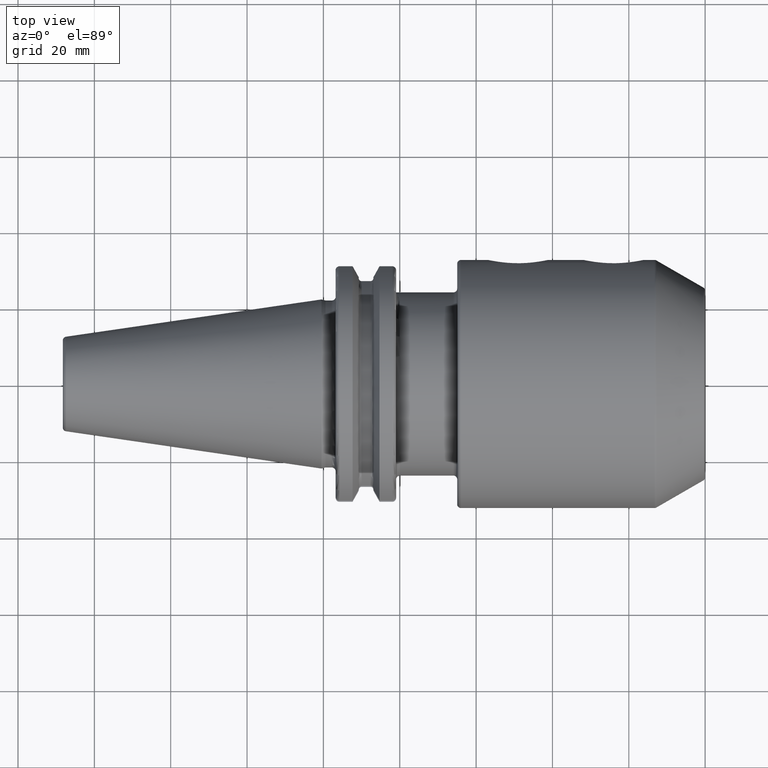
[diagram: clean part render]
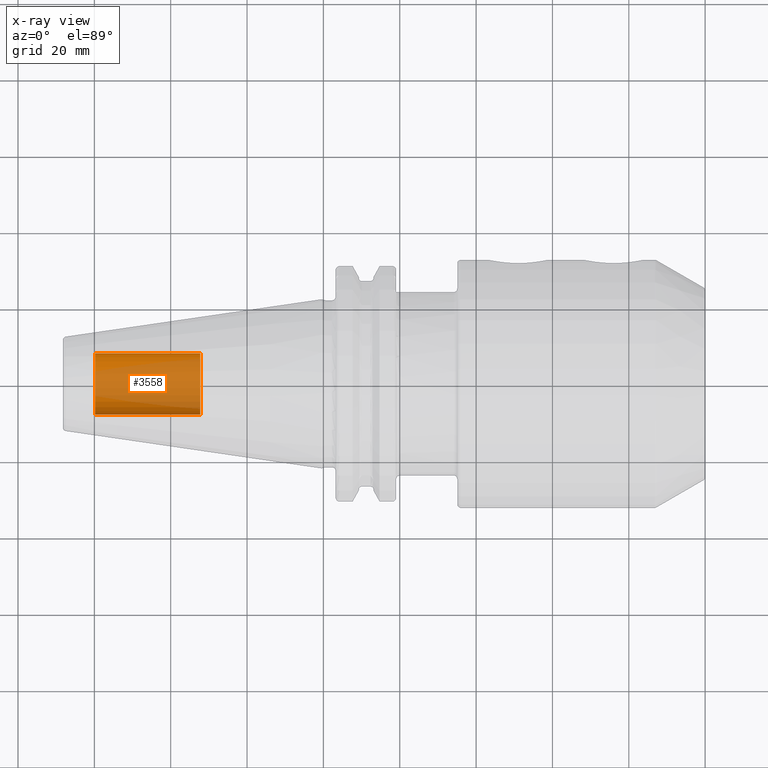
[diagram: x-ray — body ghosted, one internal face saturated and labeled with its STEP entity id]
A machine part, top view, then the same camera in x-ray: the body is ghosted and one INTERNAL B-rep face — a face not visible from any outside direction — is saturated and labeled: STEP entity #3558.
In plain terms, the highlighted cylindrical surface (edge-blend (fillet) strip) has radius 8.0028 mm, axis along (1, 0, 0).
Its self-contained STEP definition (entity closure, byte-faithful):
#3493=CARTESIAN_POINT('',(-5.98E1,0.E0,0.E0));
#3494=DIRECTION('',(-1.E0,0.E0,0.E0));
#3495=DIRECTION('',(0.E0,1.E0,0.E0));
#3496=AXIS2_PLACEMENT_3D('',#3493,#3494,#3495);
#3498=DIRECTION('',(1.E0,0.E0,0.E0));
#3499=VECTOR('',#3498,2.755E1);
#3500=CARTESIAN_POINT('',(-5.98E1,-8.00275E0,0.E0));
#3501=LINE('',#3500,#3499);
#3507=DIRECTION('',(1.E0,0.E0,0.E0));
#3508=VECTOR('',#3507,2.755E1);
#3509=CARTESIAN_POINT('',(-5.98E1,8.00275E0,0.E0));
#3510=LINE('',#3509,#3508);
#3516=CARTESIAN_POINT('',(-3.225E1,0.E0,0.E0));
#3517=DIRECTION('',(1.E0,0.E0,0.E0));
#3518=DIRECTION('',(0.E0,-1.E0,0.E0));
#3519=AXIS2_PLACEMENT_3D('',#3516,#3517,#3518);
#3531=CARTESIAN_POINT('',(-5.98E1,8.00275E0,0.E0));
#3532=CARTESIAN_POINT('',(-5.98E1,-8.00275E0,0.E0));
#3533=VERTEX_POINT('',#3531);
#3534=VERTEX_POINT('',#3532);
#3535=CARTESIAN_POINT('',(-3.225E1,8.00275E0,0.E0));
#3536=CARTESIAN_POINT('',(-3.225E1,-8.00275E0,0.E0));
#3537=VERTEX_POINT('',#3535);
#3538=VERTEX_POINT('',#3536);
#3543=CARTESIAN_POINT('',(-5.98E1,0.E0,0.E0));
#3544=DIRECTION('',(1.E0,0.E0,0.E0));
#3545=DIRECTION('',(0.E0,1.E0,0.E0));
#3546=AXIS2_PLACEMENT_3D('',#3543,#3544,#3545);
#3547=CYLINDRICAL_SURFACE('',#3546,8.00275E0);
#3549=ORIENTED_EDGE('',*,*,#3548,.T.);
#3551=ORIENTED_EDGE('',*,*,#3550,.T.);
#3553=ORIENTED_EDGE('',*,*,#3552,.T.);
#3555=ORIENTED_EDGE('',*,*,#3554,.F.);
#3556=EDGE_LOOP('',(#3549,#3551,#3553,#3555));
#3557=FACE_OUTER_BOUND('',#3556,.F.);
#3558=ADVANCED_FACE('',(#3557),#3547,.T.);
#3497=CIRCLE('',#3496,8.00275E0);
#3520=CIRCLE('',#3519,8.00275E0);
#3548=EDGE_CURVE('',#3533,#3534,#3497,.T.);
#3550=EDGE_CURVE('',#3534,#3538,#3501,.T.);
#3552=EDGE_CURVE('',#3538,#3537,#3520,.T.);
#3554=EDGE_CURVE('',#3533,#3537,#3510,.T.);